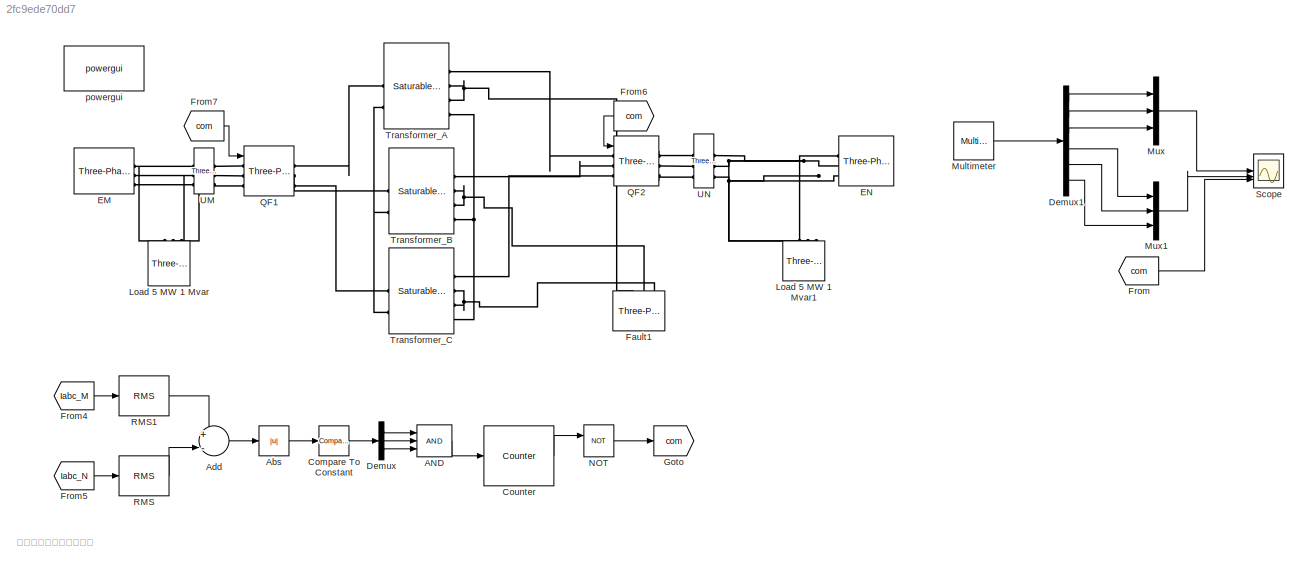
MODEL slx_2fc9ede70dd7
KIND model
CONFIG AbsTol = auto
CONFIG EnableMultiTasking = on
CONFIG FixedStep = auto
CONFIG MaxStep = 1e-4
CONFIG MinStep = auto
CONFIG RelTol = 1e-3
CONFIG SampleTimeConstraint = Unconstrained
CONFIG SolverName = ode23t
CONFIG StartTime = 0.0
CONFIG StopTime = 1
BLOCK [Logic] AND
  AllPortsSameDT = off
  IconShape = distinctive
  Inputs = 3
  OutDataTypeStr = boolean
BLOCK [Abs] Abs
  SaturateOnIntegerOverflow = off
BLOCK [Sum] Add
  Inputs = +-
BLOCK [Reference] Compare To Constant  REF=simulink/Logic and Bit
Operations/Compare
To Constant
  SourceBlock = simulink/Logic and Bit\nOperations/Compare\nTo Constant
  SourceType = Compare To Constant
BLOCK [Reference] Counter  REF=dspswit3/Counter
  SourceBlock = dspswit3/Counter
  SourceType = Counter
BLOCK [Demux] Demux
  Outputs = 3
BLOCK [Demux] Demux1
  Outputs = 6
BLOCK [Reference] EM  REF=spsThreePhaseSourceLib/Three-Phase Source
  LibrarySourceBlock = sps_lib/Sources/Three-Phase Source
  SourceBlock = spsThreePhaseSourceLib/Three-Phase Source
  SourceType = Three-Phase Source
BLOCK [Reference] EN  REF=spsThreePhaseSourceLib/Three-Phase Source
  LibrarySourceBlock = sps_lib/Sources/Three-Phase Source
  SourceBlock = spsThreePhaseSourceLib/Three-Phase Source
  SourceType = Three-Phase Source
BLOCK [Reference] Fault1  REF=spsThreePhaseFaultLib/Three-Phase Fault
  LibrarySourceBlock = sps_lib/Power Grid Elements/Three-Phase Fault
  NameLocation = right
  SourceBlock = spsThreePhaseFaultLib/Three-Phase Fault
  SourceType = Three-Phase Fault
BLOCK [From] From
  GotoTag = com
BLOCK [From] From4
  GotoTag = Iabc_M
  TagVisibility = global
BLOCK [From] From5
  GotoTag = Iabc_N
  TagVisibility = global
BLOCK [From] From6
  GotoTag = com
BLOCK [From] From7
  GotoTag = com
BLOCK [Goto] Goto
  GotoTag = com
BLOCK [Reference] Load 5 MW 1 Mvar  REF=spsThreePhaseParallelRLCLoadLib/Three-Phase
Parallel RLC Load
  AttributesFormatString = \n
  LibrarySourceBlock = sps_lib/Passives/Three-Phase\nParallel RLC Load
  NameLocation = right
  SourceBlock = spsThreePhaseParallelRLCLoadLib/Three-Phase\nParallel RLC Load
  SourceType = Three-Phase Parallel RLC Load
BLOCK [Reference] Load 5 MW 1 Mvar1  REF=spsThreePhaseParallelRLCLoadLib/Three-Phase
Parallel RLC Load
  AttributesFormatString = \n
  LibrarySourceBlock = sps_lib/Passives/Three-Phase\nParallel RLC Load
  NameLocation = right
  SourceBlock = spsThreePhaseParallelRLCLoadLib/Three-Phase\nParallel RLC Load
  SourceType = Three-Phase Parallel RLC Load
BLOCK [Reference] Multimeter  REF=spsMultimeterLib/Multimeter
  LibrarySourceBlock = sps_lib/Sensors and Measurements/Multimeter
  SourceBlock = spsMultimeterLib/Multimeter
  SourceType = Multimeter
BLOCK [Mux] Mux
  DisplayOption = bar
  Inputs = 3
BLOCK [Mux] Mux1
  DisplayOption = bar
  Inputs = 3
BLOCK [Logic] NOT
  AllPortsSameDT = off
  IconShape = distinctive
  Operator = NOT
  OutDataTypeStr = boolean
BLOCK [Reference] QF1  REF=spsThreePhaseBreakerLib/Three-Phase Breaker
  LibrarySourceBlock = sps_lib/Power Grid Elements/Three-Phase Breaker
  SourceBlock = spsThreePhaseBreakerLib/Three-Phase Breaker
  SourceType = Three-Phase Breaker
BLOCK [Reference] QF2  REF=spsThreePhaseBreakerLib/Three-Phase Breaker
  LibrarySourceBlock = sps_lib/Power Grid Elements/Three-Phase Breaker
  SourceBlock = spsThreePhaseBreakerLib/Three-Phase Breaker
  SourceType = Three-Phase Breaker
BLOCK [Reference] RMS  REF=spsRMSLib/RMS
  LibrarySourceBlock = sps_lib/Sensors and Measurements/RMS
  SourceBlock = spsRMSLib/RMS
  SourceType = RMS
BLOCK [Reference] RMS1  REF=spsRMSLib/RMS
  LibrarySourceBlock = sps_lib/Sensors and Measurements/RMS
  SourceBlock = spsRMSLib/RMS
  SourceType = RMS
BLOCK [Scope] Scope
  Floating = off
  NumInputPorts = 3
  ScopeSpecificationString = Simulink.scopes.TimeScopeBlockCfg('CurrentConfiguration', extmgr.ConfigurationSet(extmgr.Configuration('Core','General UI',true,'FigureColor',[1 1 1]),extmgr.Configuration('Core','Source UI',true),extmgr.Configuration('Sources','WiredSimulink',true),extmgr.Configuration('Visuals','Time Domain',true,'SerializedDisplays',{struct('MinYLimReal','-31186.36346','MaxYLimReal','34853.30343','YLabelReal','...<+4418ch>
BLOCK [Reference] Transformer_A  REF=spsSaturableTransformerLib/Saturable Transformer
  LibrarySourceBlock = sps_lib/Power Grid Elements/Saturable Transformer
  SourceBlock = spsSaturableTransformerLib/Saturable Transformer
  SourceType = Saturable Transformer
BLOCK [Reference] Transformer_B  REF=spsSaturableTransformerLib/Saturable Transformer
  LibrarySourceBlock = sps_lib/Power Grid Elements/Saturable Transformer
  SourceBlock = spsSaturableTransformerLib/Saturable Transformer
  SourceType = Saturable Transformer
BLOCK [Reference] Transformer_C  REF=spsSaturableTransformerLib/Saturable Transformer
  LibrarySourceBlock = sps_lib/Power Grid Elements/Saturable Transformer
  SourceBlock = spsSaturableTransformerLib/Saturable Transformer
  SourceType = Saturable Transformer
BLOCK [Reference] UM  REF=spsThreePhaseVIMeasurementLib/Three-Phase
V-I Measurement
  LibrarySourceBlock = sps_lib/Sensors and Measurements/Three-Phase\nV-I Measurement
  SourceBlock = spsThreePhaseVIMeasurementLib/Three-Phase\nV-I Measurement
  SourceType = Three-Phase VI Measurement
BLOCK [Reference] UN  REF=spsThreePhaseVIMeasurementLib/Three-Phase
V-I Measurement
  LibrarySourceBlock = sps_lib/Sensors and Measurements/Three-Phase\nV-I Measurement
  SourceBlock = spsThreePhaseVIMeasurementLib/Three-Phase\nV-I Measurement
  SourceType = Three-Phase VI Measurement
BLOCK [Reference] powergui  REF=spspowerguiLib/powergui
  Priority = 2
  SourceBlock = spspowerguiLib/powergui
  SourceType = PSB option menu block
ANNOTATION (root): 变压器纵差保护仿真研究
LINE AND:1 -> Counter:1
LINE Abs:1 -> Compare To Constant:1
LINE Add:1 -> Abs:1
LINE Compare To Constant:1 -> Demux:1
LINE Counter:1 -> NOT:1
LINE Demux1:1 -> Mux:1
LINE Demux1:2 -> Mux:2
LINE Demux1:3 -> Mux:3
LINE Demux1:4 -> Mux1:1
LINE Demux1:5 -> Mux1:2
LINE Demux1:6 -> Mux1:3
LINE Demux:1 -> AND:1
LINE Demux:2 -> AND:2
LINE Demux:3 -> AND:3
LINE From4:1 -> RMS1:1
LINE From5:1 -> RMS:1
LINE From6:1 -> QF2:1
LINE From7:1 -> QF1:1
LINE From:1 -> Scope:3
LINE Multimeter:1 -> Demux1:1
LINE Mux1:1 -> Scope:2
LINE Mux:1 -> Scope:1
LINE NOT:1 -> Goto:1
LINE RMS1:1 -> Add:1
LINE RMS:1 -> Add:2
PNET net1: EM:RConn1 -- Load 5 MW 1 Mvar:LConn1 -- UM:LConn1
PNET net2: EM:RConn2 -- Load 5 MW 1 Mvar:LConn2 -- UM:LConn2
PNET net3: EM:RConn3 -- Load 5 MW 1 Mvar:LConn3 -- UM:LConn3
PNET net4: EN:RConn1 -- Load 5 MW 1 Mvar1:LConn1 -- UN:LConn1
PNET net5: EN:RConn2 -- Load 5 MW 1 Mvar1:LConn2 -- UN:LConn2
PNET net6: EN:RConn3 -- Load 5 MW 1 Mvar1:LConn3 -- UN:LConn3
PNET net7: Fault1:LConn1 -- Transformer_A:RConn2 -- Transformer_A:RConn3
PNET net8: Fault1:LConn2 -- Transformer_B:RConn2 -- Transformer_B:RConn3
PNET net9: Fault1:LConn3 -- Transformer_C:RConn2 -- Transformer_C:RConn3
PLINE QF1:LConn1 -- UM:RConn1
PLINE QF1:LConn2 -- UM:RConn2
PLINE QF1:LConn3 -- UM:RConn3
PLINE QF1:RConn1 -- Transformer_A:LConn1
PLINE QF1:RConn2 -- Transformer_B:LConn1
PLINE QF1:RConn3 -- Transformer_C:LConn1
PLINE QF2:LConn1 -- Transformer_A:RConn1
PLINE QF2:LConn2 -- Transformer_B:RConn1
PLINE QF2:LConn3 -- Transformer_C:RConn1
PLINE QF2:RConn1 -- UN:RConn1
PLINE QF2:RConn2 -- UN:RConn2
PLINE QF2:RConn3 -- UN:RConn3
PNET net10: Transformer_A:LConn2 -- Transformer_B:LConn2 -- Transformer_C:LConn2
PNET net11: Transformer_A:RConn4 -- Transformer_B:RConn4 -- Transformer_C:RConn4
note: PNET lines group multi-terminal physical nets as a canonical sorted terminal list (undirected conserving connections); 2-terminal nets keep the pairwise PLINE form
